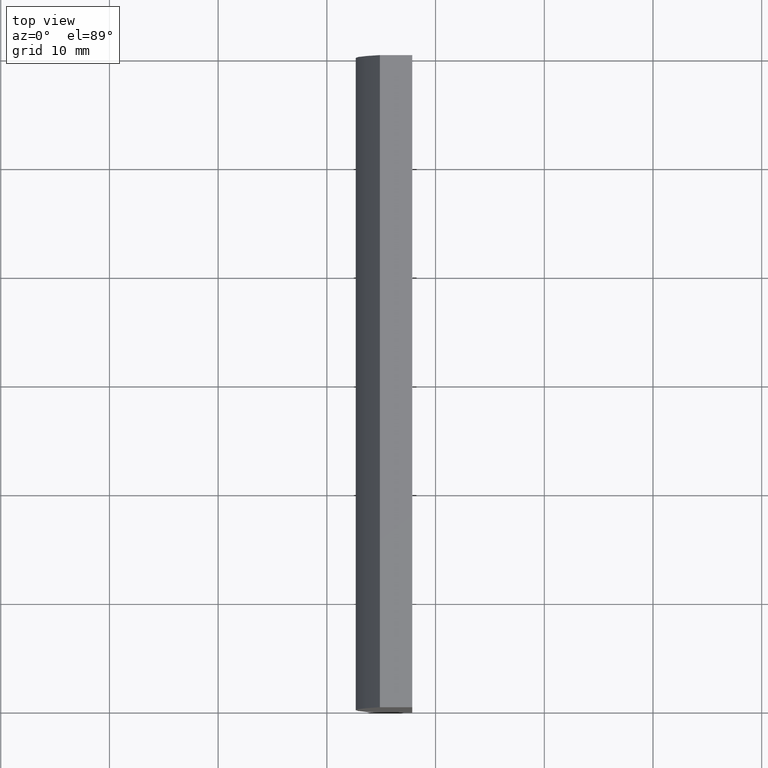
[diagram: clean part render]
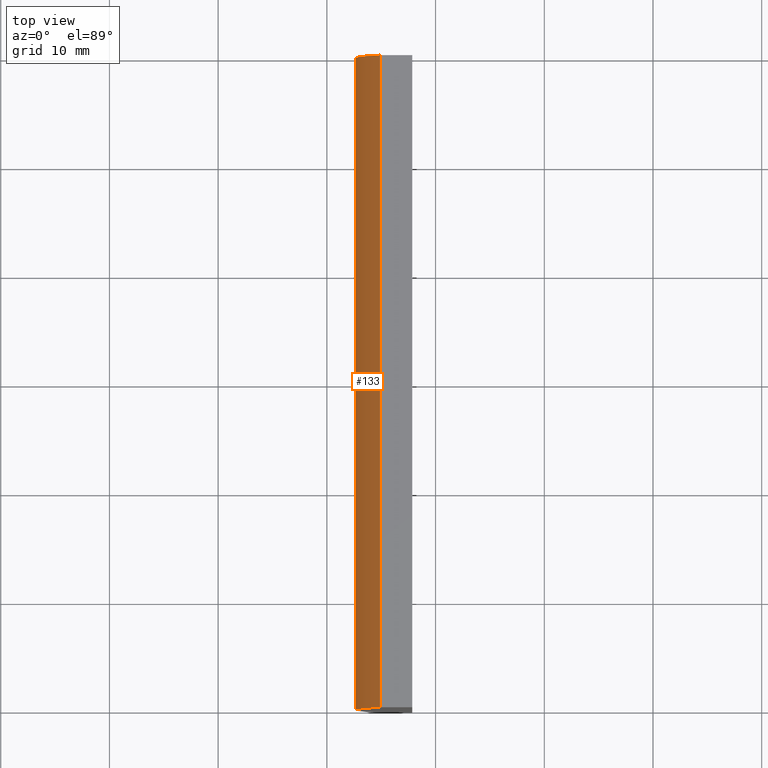
[diagram: same view with one face highlighted and labeled with its STEP entity id]
A machine part, top view. The second image highlights one B-rep face of the part: STEP entity #133.
In plain terms, the highlighted cylindrical surface (partial cylindrical patch) has radius 51.7 mm, axis along (-0, -1, -0).
Its self-contained STEP definition (entity closure, byte-faithful):
#4 = CARTESIAN_POINT ( 'NONE',  ( -45.12095153845805100, 0.0000000000000000000, -15.00000000000000000 ) ) ;
#6 = VERTEX_POINT ( 'NONE', #4 ) ;
#7 = ORIENTED_EDGE ( 'NONE', *, *, #119, .T. ) ;
#12 = AXIS2_PLACEMENT_3D ( 'NONE', #68, #102, #48 ) ;
#13 = VECTOR ( 'NONE', #174, 1000.000000000000000 ) ;
#21 = CARTESIAN_POINT ( 'NONE',  ( -45.12095153845805100, 60.00000000000000000, -15.00000000000000000 ) ) ;
#29 = EDGE_LOOP ( 'NONE', ( #67, #62, #93, #7 ) ) ;
#33 = EDGE_CURVE ( 'NONE', #6, #125, #79, .T. ) ;
#37 = VERTEX_POINT ( 'NONE', #97 ) ;
#45 = DIRECTION ( 'NONE',  ( 0.0000000000000000000, 0.0000000000000000000, -1.000000000000000000 ) ) ;
#48 = DIRECTION ( 'NONE',  ( 0.0000000000000000000, 0.0000000000000000000, 1.000000000000000000 ) ) ;
#62 = ORIENTED_EDGE ( 'NONE', *, *, #95, .F. ) ;
#67 = ORIENTED_EDGE ( 'NONE', *, *, #33, .T. ) ;
#68 = CARTESIAN_POINT ( 'NONE',  ( 4.355204334851265500, 60.00000000000000000, 4.286263797015675000E-017 ) ) ;
#73 = CIRCLE ( 'NONE', #12, 51.69999999999999600 ) ;
#75 = EDGE_CURVE ( 'NONE', #37, #203, #73, .T. ) ;
#79 = CIRCLE ( 'NONE', #111, 51.69999999999999600 ) ;
#90 = DIRECTION ( 'NONE',  ( 0.0000000000000000000, 0.0000000000000000000, 1.000000000000000000 ) ) ;
#93 = ORIENTED_EDGE ( 'NONE', *, *, #75, .F. ) ;
#95 = EDGE_CURVE ( 'NONE', #203, #125, #105, .T. ) ;
#97 = CARTESIAN_POINT ( 'NONE',  ( -45.12095153845805100, 60.00000000000000000, -15.00000000000000000 ) ) ;
#102 = DIRECTION ( 'NONE',  ( 0.0000000000000000000, 1.000000000000000000, 0.0000000000000000000 ) ) ;
#105 = LINE ( 'NONE', #199, #150 ) ;
#107 = AXIS2_PLACEMENT_3D ( 'NONE', #115, #109, #45 ) ;
#109 = DIRECTION ( 'NONE',  ( -0.0000000000000000000, -1.000000000000000000, -0.0000000000000000000 ) ) ;
#111 = AXIS2_PLACEMENT_3D ( 'NONE', #126, #128, #90 ) ;
#115 = CARTESIAN_POINT ( 'NONE',  ( 4.355204334851265500, 60.00000000000000000, 4.286263797015675000E-017 ) ) ;
#119 = EDGE_CURVE ( 'NONE', #37, #6, #165, .T. ) ;
#122 = DIRECTION ( 'NONE',  ( -0.0000000000000000000, -1.000000000000000000, -0.0000000000000000000 ) ) ;
#125 = VERTEX_POINT ( 'NONE', #198 ) ;
#126 = CARTESIAN_POINT ( 'NONE',  ( 4.355204334851265500, 0.0000000000000000000, 4.286263797015675000E-017 ) ) ;
#128 = DIRECTION ( 'NONE',  ( 0.0000000000000000000, 1.000000000000000000, 0.0000000000000000000 ) ) ;
#133 = ADVANCED_FACE ( 'NONE', ( #134 ), #201, .T. ) ;
#134 = FACE_OUTER_BOUND ( 'NONE', #29, .T. ) ;
#150 = VECTOR ( 'NONE', #122, 1000.000000000000000 ) ;
#165 = LINE ( 'NONE', #21, #13 ) ;
#174 = DIRECTION ( 'NONE',  ( -0.0000000000000000000, -1.000000000000000000, -0.0000000000000000000 ) ) ;
#186 = CARTESIAN_POINT ( 'NONE',  ( -45.12095153845805100, 60.00000000000000000, 15.00000000000000000 ) ) ;
#198 = CARTESIAN_POINT ( 'NONE',  ( -45.12095153845805100, 0.0000000000000000000, 15.00000000000000000 ) ) ;
#199 = CARTESIAN_POINT ( 'NONE',  ( -45.12095153845805100, 60.00000000000000000, 15.00000000000000000 ) ) ;
#201 = CYLINDRICAL_SURFACE ( 'NONE', #107, 51.69999999999999600 ) ;
#203 = VERTEX_POINT ( 'NONE', #186 ) ;